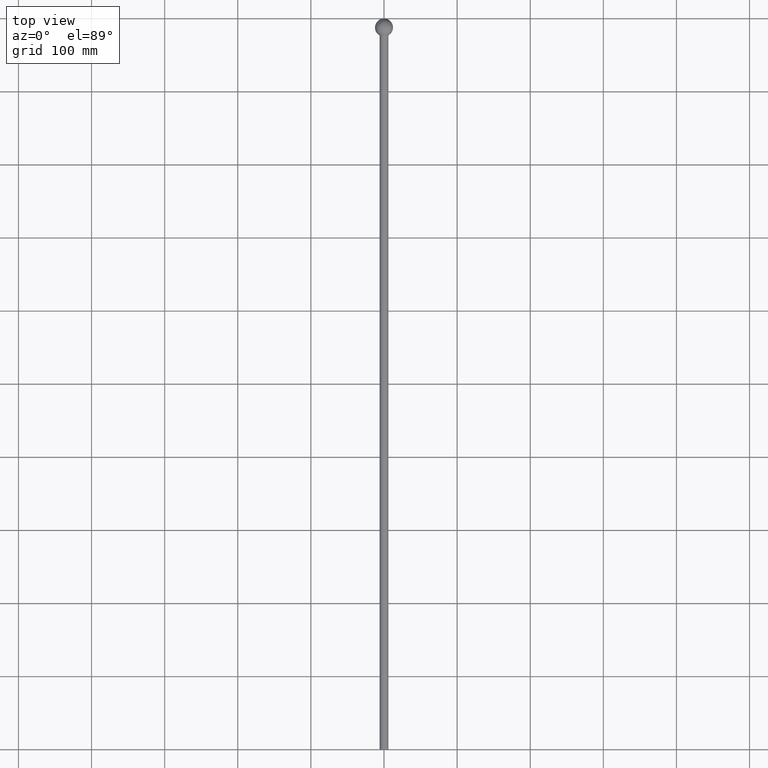
[diagram: clean part render]
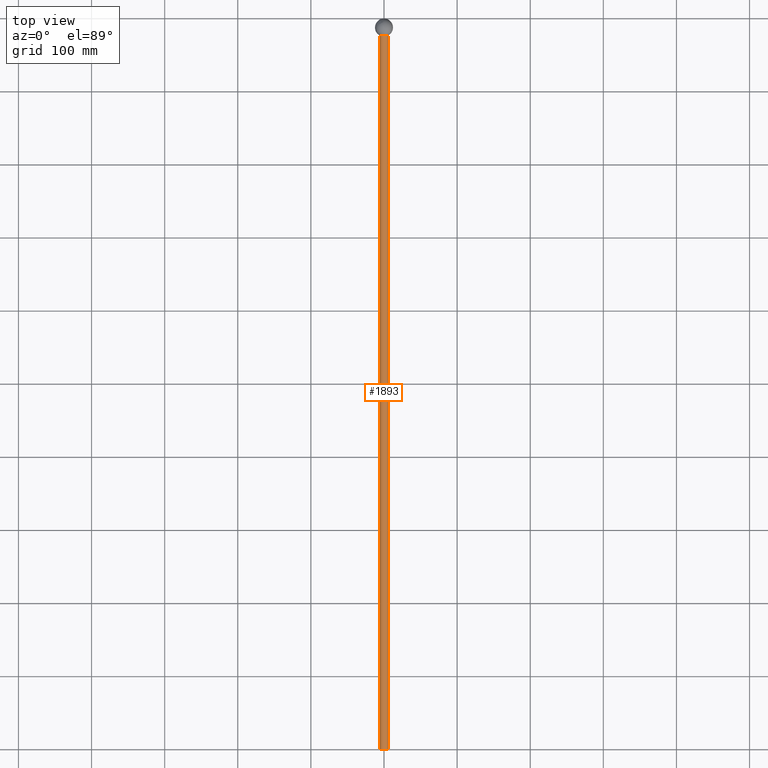
[diagram: same view with one face highlighted and labeled with its STEP entity id]
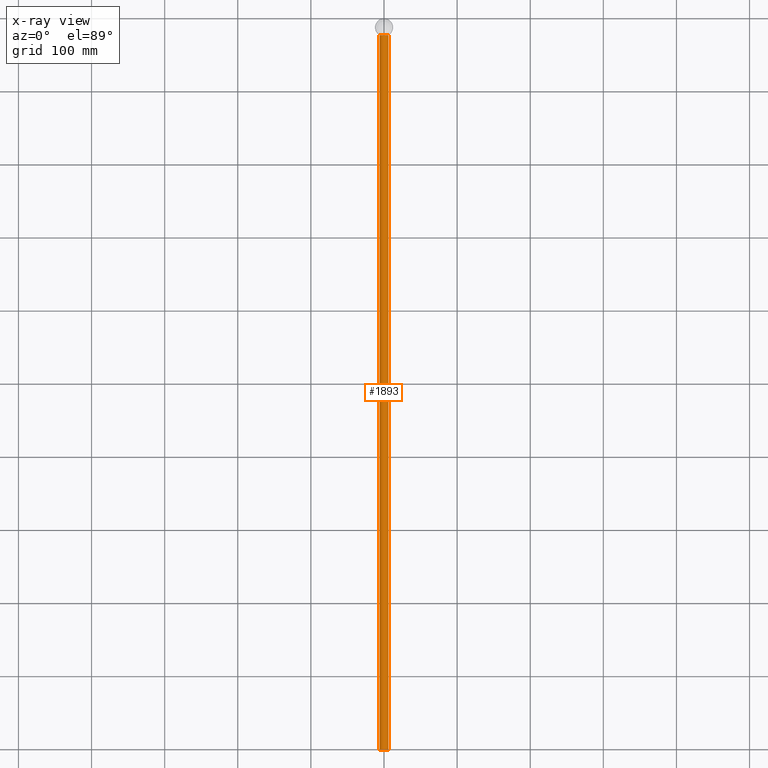
[diagram: x-ray of the same camera — body ghosted, the highlighted face saturated]
A machine part, top view. The second image highlights one B-rep face of the part: STEP entity #1893.
The next image is the same camera in x-ray: the body ghosted, the highlighted face saturated — about 0% of this face is hidden behind the body in this view.
In plain terms, the highlighted cylindrical surface (bore or boss wall) has radius 6 mm, axis along (-0, -1, -0).
Its self-contained STEP definition (entity closure, byte-faithful):
#161 = DIRECTION ( 'NONE',  ( -0.000000000000000000, -1.000000000000000000, -0.000000000000000000 ) ) ;
#780 = CIRCLE ( 'NONE', #7369, 6.000000000000000888 ) ;
#937 = DIRECTION ( 'NONE',  ( 0.000000000000000000, 0.000000000000000000, -1.000000000000000000 ) ) ;
#1375 = EDGE_CURVE ( 'NONE', #10517, #10517, #9984, .T. ) ;
#1626 = CARTESIAN_POINT ( 'NONE',  ( 0.000000000000000000, -2.740326310846880415E-16, -6.000000000000019540 ) ) ;
#1893 = ADVANCED_FACE ( 'NONE', ( #9703, #7880 ), #6642, .T. ) ;
#2008 = CARTESIAN_POINT ( 'NONE',  ( 0.000000000000000000, -2.740326310846880415E-16, 0.000000000000000000 ) ) ;
#2758 = DIRECTION ( 'NONE',  ( -0.000000000000000000, -1.000000000000000000, -0.000000000000000000 ) ) ;
#3093 = AXIS2_PLACEMENT_3D ( 'NONE', #2008, #161, #937 ) ;
#3242 = ORIENTED_EDGE ( 'NONE', *, *, #1375, .F. ) ;
#3401 = CARTESIAN_POINT ( 'NONE',  ( 0.000000000000000000, 976.5341439002693278, -6.000000000000000888 ) ) ;
#3666 = DIRECTION ( 'NONE',  ( 0.000000000000000000, 0.000000000000000000, -1.000000000000000000 ) ) ;
#3840 = EDGE_CURVE ( 'NONE', #8398, #8398, #780, .T. ) ;
#6642 = CYLINDRICAL_SURFACE ( 'NONE', #10495, 6.000000000000010658 ) ;
#6995 = DIRECTION ( 'NONE',  ( -0.000000000000000000, -1.000000000000000000, -0.000000000000000000 ) ) ;
#7113 = EDGE_LOOP ( 'NONE', ( #3242 ) ) ;
#7369 = AXIS2_PLACEMENT_3D ( 'NONE', #11674, #2758, #3666 ) ;
#7660 = ORIENTED_EDGE ( 'NONE', *, *, #3840, .T. ) ;
#7880 = FACE_OUTER_BOUND ( 'NONE', #7113, .T. ) ;
#7971 = CARTESIAN_POINT ( 'NONE',  ( 0.000000000000000000, 0.000000000000000000, 0.000000000000000000 ) ) ;
#8398 = VERTEX_POINT ( 'NONE', #3401 ) ;
#9703 = FACE_OUTER_BOUND ( 'NONE', #10347, .T. ) ;
#9984 = CIRCLE ( 'NONE', #3093, 6.000000000000019540 ) ;
#10347 = EDGE_LOOP ( 'NONE', ( #7660 ) ) ;
#10495 = AXIS2_PLACEMENT_3D ( 'NONE', #7971, #6995, #11556 ) ;
#10517 = VERTEX_POINT ( 'NONE', #1626 ) ;
#11556 = DIRECTION ( 'NONE',  ( 0.000000000000000000, 0.000000000000000000, -1.000000000000000000 ) ) ;
#11674 = CARTESIAN_POINT ( 'NONE',  ( 0.000000000000000000, 976.5341439002693278, 0.000000000000000000 ) ) ;